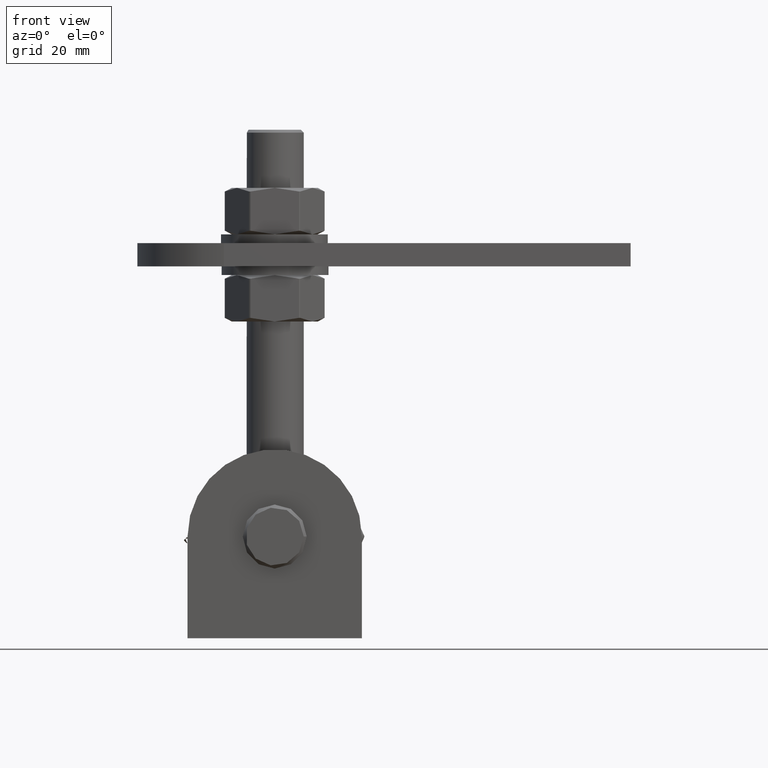
[diagram: clean part render]
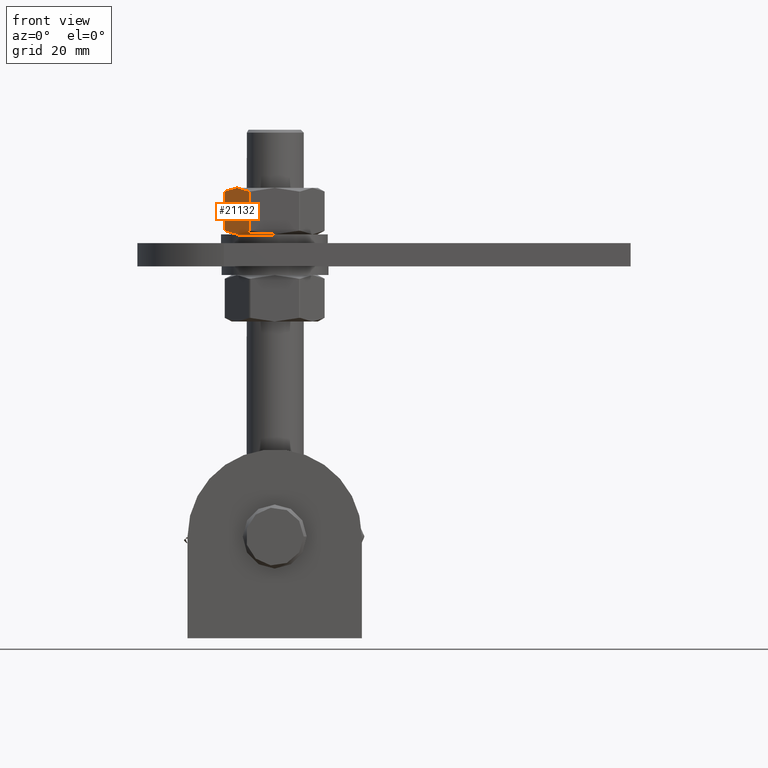
[diagram: same view with one face highlighted and labeled with its STEP entity id]
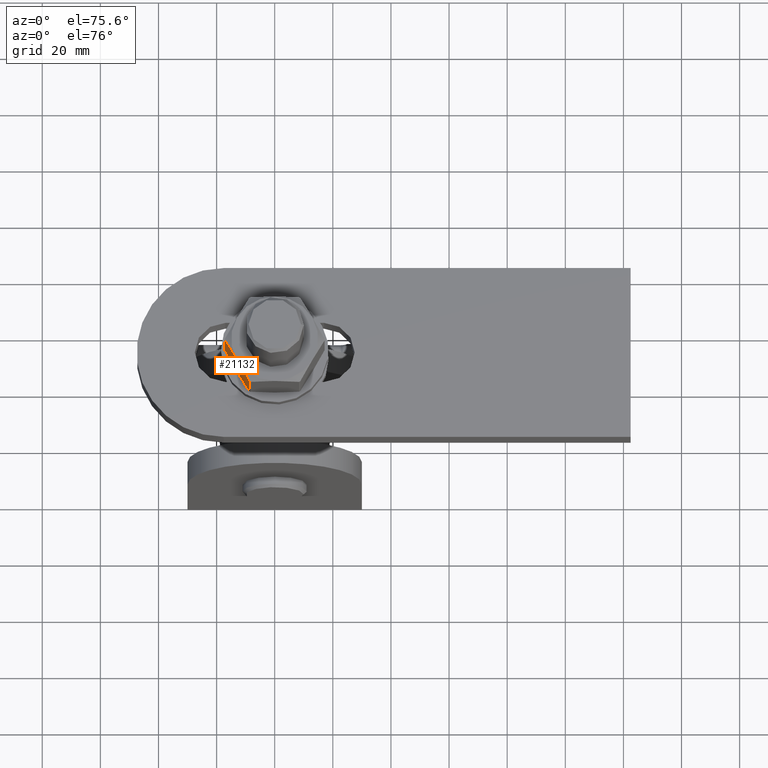
[diagram: same view with one face highlighted and labeled with its STEP entity id]
A machine part, front view. The second image highlights one B-rep face of the part: STEP entity #21132.
A second angle (auxiliary view) of the same face is appended — the face is thin or edge-on in the first view.
In plain terms, the highlighted planar face has unit normal (0.866, 0.5, 0).
Its self-contained STEP definition (entity closure, byte-faithful):
#41 = EDGE_CURVE ( 'NONE', #12911, #27228, #5515, .T. ) ;
#362 = CARTESIAN_POINT ( 'NONE',  ( -12.99038105676658361, 8.000000000000007105, 7.499999999999946709 ) ) ;
#793 = CARTESIAN_POINT ( 'NONE',  ( -17.17617050839135828, 6.742537006636517560, 0.2499999999999986400 ) ) ;
#896 = CARTESIAN_POINT ( 'NONE',  ( -13.34536019505832627, 8.000000000000007105, 6.885158096851717424 ) ) ;
#1375 = CARTESIAN_POINT ( 'NONE',  ( -17.17617050839160697, -6.742537006636406538, 0.2499999999996449784 ) ) ;
#2228 = CARTESIAN_POINT ( 'NONE',  ( -12.27878121729826155, -7.970464509670994957, 8.732527076617023098 ) ) ;
#2827 = CARTESIAN_POINT ( 'NONE',  ( -12.27769715201395151, 8.000000000000005329, 8.734404732768174640 ) ) ;
#3484 = CARTESIAN_POINT ( 'NONE',  ( -15.80384537938048517, 7.443203950645601807, 2.626936847950359866 ) ) ;
#3642 = CARTESIAN_POINT ( 'NONE',  ( -17.32050807568876749, 8.000000000000007105, -1.743893177348695732E-15 ) ) ;
#3822 = VERTEX_POINT ( 'NONE', #17051 ) ;
#3928 = B_SPLINE_CURVE_WITH_KNOTS ( 'NONE', 3,
 ( #24469, #29325, #19480, #24568, #2827, #362 ),
 .UNSPECIFIED., .F., .F.,
 ( 4, 2, 4 ),
 ( 0.0002976797144595310545, 0.004530338165266575672, 0.008762996616073619530 ),
 .UNSPECIFIED. ) ;
#4283 = CARTESIAN_POINT ( 'NONE',  ( -11.57308690788089400, -7.855961152673858194, 9.954825475140152591 ) ) ;
#4487 = CARTESIAN_POINT ( 'NONE',  ( -10.17691673415274956, -7.443203950645576050, 12.37306315204958373 ) ) ;
#5515 = LINE ( 'NONE', #17985, #10476 ) ;
#5681 = ORIENTED_EDGE ( 'NONE', *, *, #26627, .T. ) ;
#6500 = CARTESIAN_POINT ( 'NONE',  ( -12.99038105676658006, -7.999999999999992895, 7.499999999999946709 ) ) ;
#6930 = EDGE_CURVE ( 'NONE', #3822, #16188, #31543, .T. ) ;
#7971 = CARTESIAN_POINT ( 'NONE',  ( -14.40767520565234783, 7.855961152673883952, 5.045174524859776355 ) ) ;
#8180 = CARTESIAN_POINT ( 'NONE',  ( -13.70198089623497850, 7.970464509671022491, 6.267472923382903183 ) ) ;
#8957 = CARTESIAN_POINT ( 'NONE',  ( -13.70306496151928854, -7.999999999999977796, 6.265595267231761412 ) ) ;
#10030 = CARTESIAN_POINT ( 'NONE',  ( -8.804591605141588673, 6.742537006636379004, 14.75000000000024514 ) ) ;
#10476 = VECTOR ( 'NONE', #25429, 1000.000000000000000 ) ;
#10701 = VECTOR ( 'NONE', #12631, 1000.000000000000000 ) ;
#10710 = ORIENTED_EDGE ( 'NONE', *, *, #30080, .T. ) ;
#10894 = DIRECTION ( 'NONE',  ( 0.8660254037844370423, 0.000000000000000000, -0.5000000000000028866 ) ) ;
#11710 = CARTESIAN_POINT ( 'NONE',  ( -12.99038105676658361, 8.000000000000007105, 7.499999999999946709 ) ) ;
#11799 = B_SPLINE_CURVE_WITH_KNOTS ( 'NONE', 3,
 ( #27345, #896, #8180, #7971, #25327, #3484, #22893, #793 ),
 .UNSPECIFIED., .F., .F.,
 ( 4, 2, 2, 4 ),
 ( 0.008762996616073619530, 0.01087123203367016885, 0.01297946745126671991, 0.01719593828645982203 ),
 .UNSPECIFIED. ) ;
#12265 = LINE ( 'NONE', #29509, #10701 ) ;
#12631 = DIRECTION ( 'NONE',  ( -0.000000000000000000, 1.000000000000000000, 1.029231301106134717E-41 ) ) ;
#12911 = VERTEX_POINT ( 'NONE', #27036 ) ;
#13355 = EDGE_LOOP ( 'NONE', ( #18557, #29464, #5681, #18269, #23754, #10710 ) ) ;
#14038 = AXIS2_PLACEMENT_3D ( 'NONE', #3642, #10894, #28108 ) ;
#14500 = B_SPLINE_CURVE_WITH_KNOTS ( 'NONE', 3,
 ( #1375, #25583, #18660, #18459, #8957, #6500 ),
 .UNSPECIFIED., .F., .F.,
 ( 4, 2, 4 ),
 ( 0.0002976797144595329518, 0.004530338165266583478, 0.008762996616073633407 ),
 .UNSPECIFIED. ) ;
#14604 = CARTESIAN_POINT ( 'NONE',  ( -8.804591605141787625, -6.742537006636517560, 14.74999999999989519 ) ) ;
#16188 = VERTEX_POINT ( 'NONE', #14604 ) ;
#16289 = CARTESIAN_POINT ( 'NONE',  ( -17.17617050839160697, -6.742537006636406538, 0.2499999999996449784 ) ) ;
#16760 = CARTESIAN_POINT ( 'NONE',  ( -11.22252638838175010, -7.771100192624744274, 10.56201410604041335 ) ) ;
#16866 = CARTESIAN_POINT ( 'NONE',  ( -12.99038105676658006, -7.999999999999992895, 7.499999999999946709 ) ) ;
#17051 = CARTESIAN_POINT ( 'NONE',  ( -12.99038105676658006, -7.999999999999992895, 7.499999999999946709 ) ) ;
#17985 = CARTESIAN_POINT ( 'NONE',  ( -17.17617050839135828, 8.000000000000007105, 0.2499999999999971967 ) ) ;
#18269 = ORIENTED_EDGE ( 'NONE', *, *, #6930, .T. ) ;
#18459 = CARTESIAN_POINT ( 'NONE',  ( -14.40719747518255645, -7.880936946784298236, 5.046001978305784341 ) ) ;
#18557 = ORIENTED_EDGE ( 'NONE', *, *, #28572, .T. ) ;
#18660 = CARTESIAN_POINT ( 'NONE',  ( -15.80120340677630075, -7.444278057055680797, 2.631512878733031080 ) ) ;
#18879 = CARTESIAN_POINT ( 'NONE',  ( -12.63540191847491734, -7.999999999999979572, 8.114841903148224844 ) ) ;
#18892 = VERTEX_POINT ( 'NONE', #10030 ) ;
#19480 = CARTESIAN_POINT ( 'NONE',  ( -10.17955870675695351, 7.444278057055711884, 12.36848712126690408 ) ) ;
#20912 = PLANE ( 'NONE',  #14038 ) ;
#21132 = ADVANCED_FACE ( 'NONE', ( #27712 ), #20912, .F. ) ;
#21330 = CARTESIAN_POINT ( 'NONE',  ( -8.804591605141787625, -6.742537006636517560, 14.74999999999989519 ) ) ;
#22893 = CARTESIAN_POINT ( 'NONE',  ( -16.49284048604359043, 7.127071147645167137, 1.433562317043520329 ) ) ;
#23754 = ORIENTED_EDGE ( 'NONE', *, *, #29635, .T. ) ;
#24469 = CARTESIAN_POINT ( 'NONE',  ( -8.804591605141588673, 6.742537006636379004, 14.75000000000024514 ) ) ;
#24568 = CARTESIAN_POINT ( 'NONE',  ( -11.57356463835068361, 7.880936946784331099, 9.953998021694150822 ) ) ;
#25327 = CARTESIAN_POINT ( 'NONE',  ( -14.75823572515149174, 7.771100192624770919, 4.437985893959524475 ) ) ;
#25429 = DIRECTION ( 'NONE',  ( 0.000000000000000000, -1.000000000000000000, -1.029231301106134717E-41 ) ) ;
#25583 = CARTESIAN_POINT ( 'NONE',  ( -16.49117218606730262, -7.128009959459867595, 1.436451897364716013 ) ) ;
#26210 = CARTESIAN_POINT ( 'NONE',  ( -9.487921627489644294, -7.127071147645142268, 13.56643768295641905 ) ) ;
#26627 = EDGE_CURVE ( 'NONE', #27228, #3822, #14500, .T. ) ;
#27036 = CARTESIAN_POINT ( 'NONE',  ( -17.17617050839135828, 6.742537006636517560, 0.2499999999999986400 ) ) ;
#27228 = VERTEX_POINT ( 'NONE', #16289 ) ;
#27345 = CARTESIAN_POINT ( 'NONE',  ( -12.99038105676658361, 8.000000000000007105, 7.499999999999946709 ) ) ;
#27361 = VERTEX_POINT ( 'NONE', #11710 ) ;
#27712 = FACE_OUTER_BOUND ( 'NONE', #13355, .T. ) ;
#28108 = DIRECTION ( 'NONE',  ( -0.5000000000000028866, 0.000000000000000000, -0.8660254037844370423 ) ) ;
#28572 = EDGE_CURVE ( 'NONE', #27361, #12911, #11799, .T. ) ;
#29325 = CARTESIAN_POINT ( 'NONE',  ( -9.489589927465940988, 7.128009959459899569, 13.56354810263521671 ) ) ;
#29464 = ORIENTED_EDGE ( 'NONE', *, *, #41, .T. ) ;
#29509 = CARTESIAN_POINT ( 'NONE',  ( -8.804591605141791177, 8.000000000000007105, 14.74999999999989342 ) ) ;
#29635 = EDGE_CURVE ( 'NONE', #16188, #18892, #12265, .T. ) ;
#30080 = EDGE_CURVE ( 'NONE', #18892, #27361, #3928, .T. ) ;
#31543 = B_SPLINE_CURVE_WITH_KNOTS ( 'NONE', 3,
 ( #16866, #18879, #2228, #4283, #16760, #4487, #26210, #21330 ),
 .UNSPECIFIED., .F., .F.,
 ( 4, 2, 2, 4 ),
 ( 0.008762996616073633407, 0.01087123203367018620, 0.01297946745126673899, 0.01719593828645984632 ),
 .UNSPECIFIED. ) ;